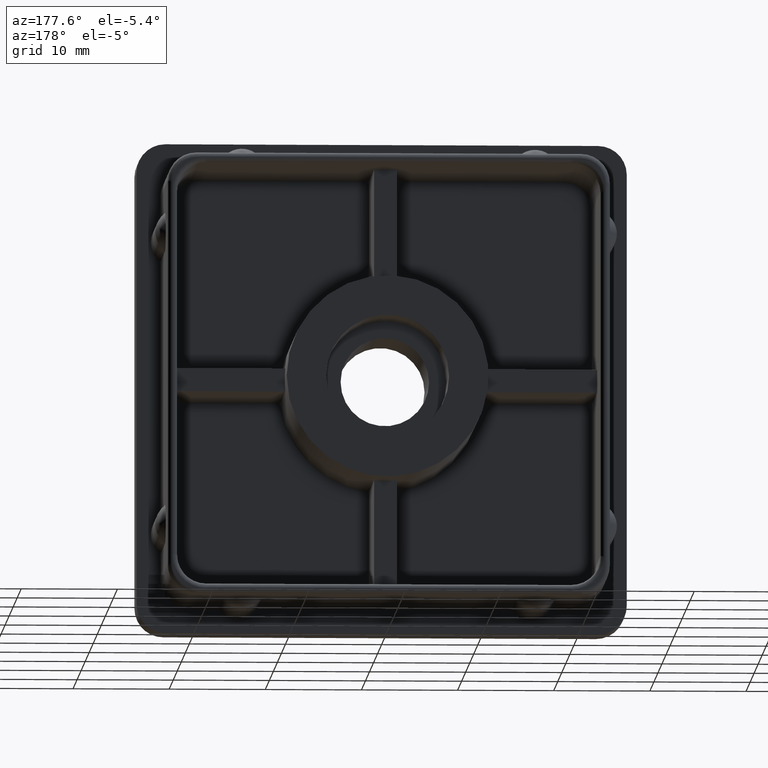
[diagram: clean part render]
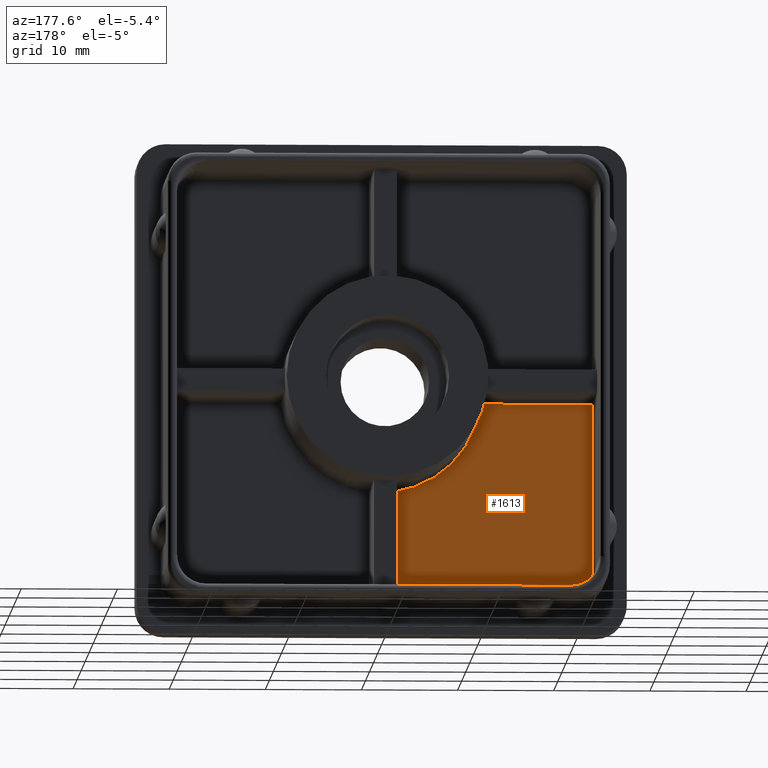
[diagram: same view with one face highlighted and labeled with its STEP entity id]
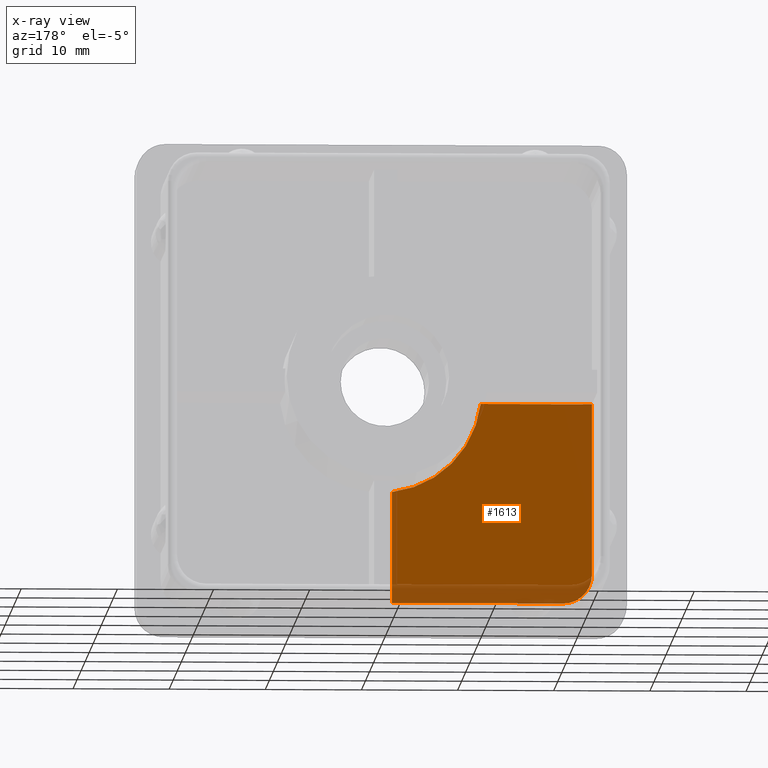
[diagram: x-ray of the same camera — body ghosted, the highlighted face saturated]
A machine part, auxiliary view. The second image highlights one B-rep face of the part: STEP entity #1613.
The next image is the same camera in x-ray: the body ghosted, the highlighted face saturated — about 12% of this face is hidden behind the body in this view.
In plain terms, the highlighted planar face has unit normal (0, -1, 0).
Its self-contained STEP definition (entity closure, byte-faithful):
#51=PLANE('',#1766);
#111=CIRCLE('',#1705,3.);
#144=CIRCLE('',#1767,10.5);
#247=FACE_OUTER_BOUND('',#339,.T.);
#339=EDGE_LOOP('',(#1376,#1377,#1378,#1379,#1380,#1381));
#438=LINE('',#3767,#570);
#474=LINE('',#3902,#606);
#475=LINE('',#3904,#607);
#476=LINE('',#3907,#608);
#570=VECTOR('',#1984,17.8);
#606=VECTOR('',#2146,17.8);
#607=VECTOR('',#2147,11.5687968095718);
#608=VECTOR('',#2150,11.5687968095718);
#762=VERTEX_POINT('',#3764);
#763=VERTEX_POINT('',#3766);
#767=VERTEX_POINT('',#3776);
#799=VERTEX_POINT('',#3901);
#800=VERTEX_POINT('',#3903);
#801=VERTEX_POINT('',#3905);
#946=EDGE_CURVE('',#762,#763,#438,.T.);
#952=EDGE_CURVE('',#762,#767,#111,.T.);
#1015=EDGE_CURVE('',#799,#767,#474,.T.);
#1016=EDGE_CURVE('',#799,#800,#475,.T.);
#1017=EDGE_CURVE('',#800,#801,#144,.T.);
#1018=EDGE_CURVE('',#801,#763,#476,.T.);
#1376=ORIENTED_EDGE('',*,*,#952,.T.);
#1377=ORIENTED_EDGE('',*,*,#1015,.F.);
#1378=ORIENTED_EDGE('',*,*,#1016,.T.);
#1379=ORIENTED_EDGE('',*,*,#1017,.T.);
#1380=ORIENTED_EDGE('',*,*,#1018,.T.);
#1381=ORIENTED_EDGE('',*,*,#946,.F.);
#1613=ADVANCED_FACE('',(#247),#51,.F.);
#1705=AXIS2_PLACEMENT_3D('',#3778,#1992,#1993);
#1766=AXIS2_PLACEMENT_3D('',#3900,#2144,#2145);
#1767=AXIS2_PLACEMENT_3D('',#3906,#2148,#2149);
#1984=DIRECTION('',(1.,0.,1.00929365875014E-16));
#1992=DIRECTION('center_axis',(0.,1.,0.));
#1993=DIRECTION('ref_axis',(-0.707106781186548,0.,-0.707106781186547));
#2144=DIRECTION('center_axis',(0.,-1.,0.));
#2145=DIRECTION('ref_axis',(0.,0.,-1.));
#2146=DIRECTION('',(-2.01858731750028E-16,0.,-1.));
#2147=DIRECTION('',(1.,0.,-2.49677734819701E-16));
#2148=DIRECTION('center_axis',(0.,-1.,0.));
#2149=DIRECTION('ref_axis',(-1.,0.,0.));
#2150=DIRECTION('',(-3.10910074777069E-16,0.,-1.));
#3764=CARTESIAN_POINT('',(-19.,-3.,-22.));
#3766=CARTESIAN_POINT('',(-1.20000000000001,-3.,-22.));
#3767=CARTESIAN_POINT('',(-22.,-3.,-22.));
#3776=CARTESIAN_POINT('',(-22.,-3.,-19.));
#3778=CARTESIAN_POINT('Origin',(-19.,-3.,-19.));
#3900=CARTESIAN_POINT('Origin',(-3.78485122031303E-15,-3.,-4.89507424493819E-15));
#3901=CARTESIAN_POINT('',(-22.,-3.,-1.19999999999999));
#3902=CARTESIAN_POINT('',(-22.,-3.,22.));
#3903=CARTESIAN_POINT('',(-10.4312031904282,-3.,-1.2));
#3904=CARTESIAN_POINT('',(-5.,-3.,-1.2));
#3905=CARTESIAN_POINT('',(-1.2,-3.,-10.4312031904282));
#3906=CARTESIAN_POINT('Origin',(0.,-3.,0.));
#3907=CARTESIAN_POINT('',(-1.2,-3.,-11.));